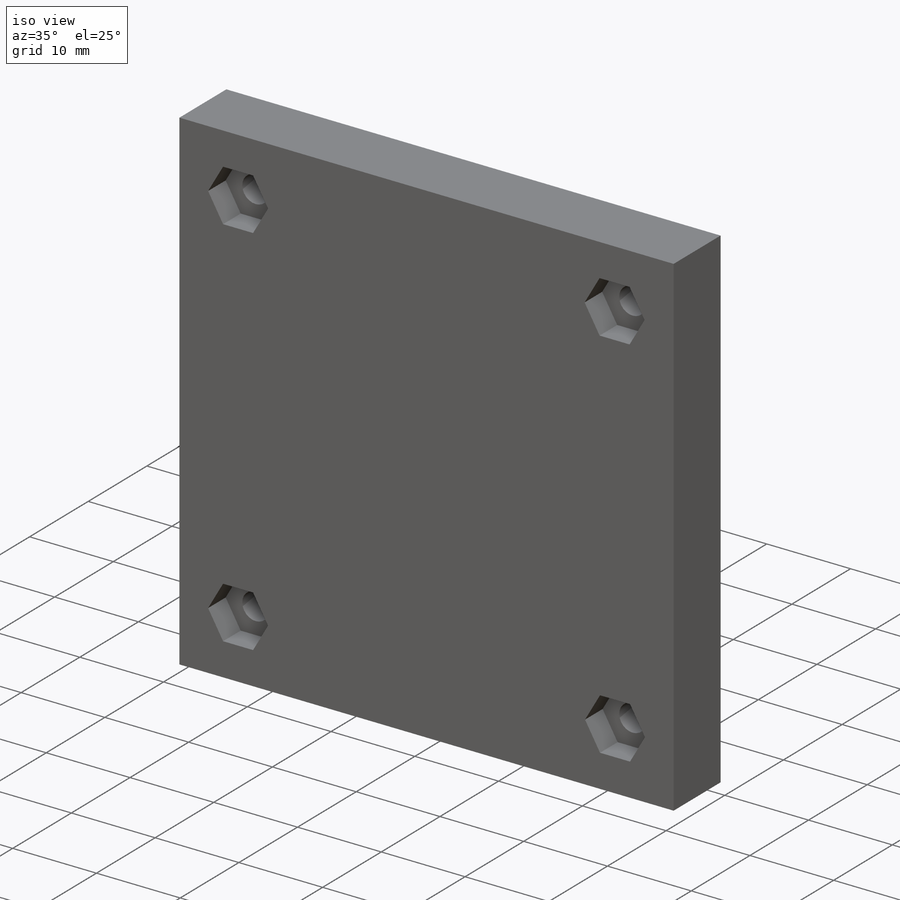
[diagram: iso view]
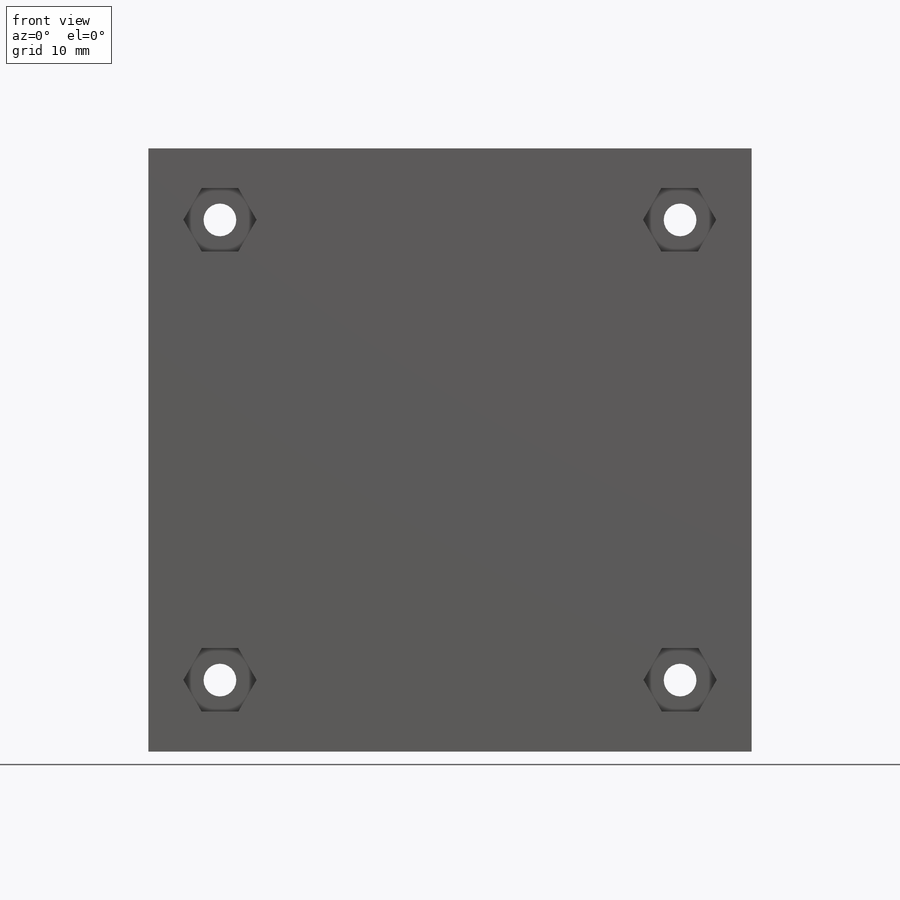
[diagram: front view]
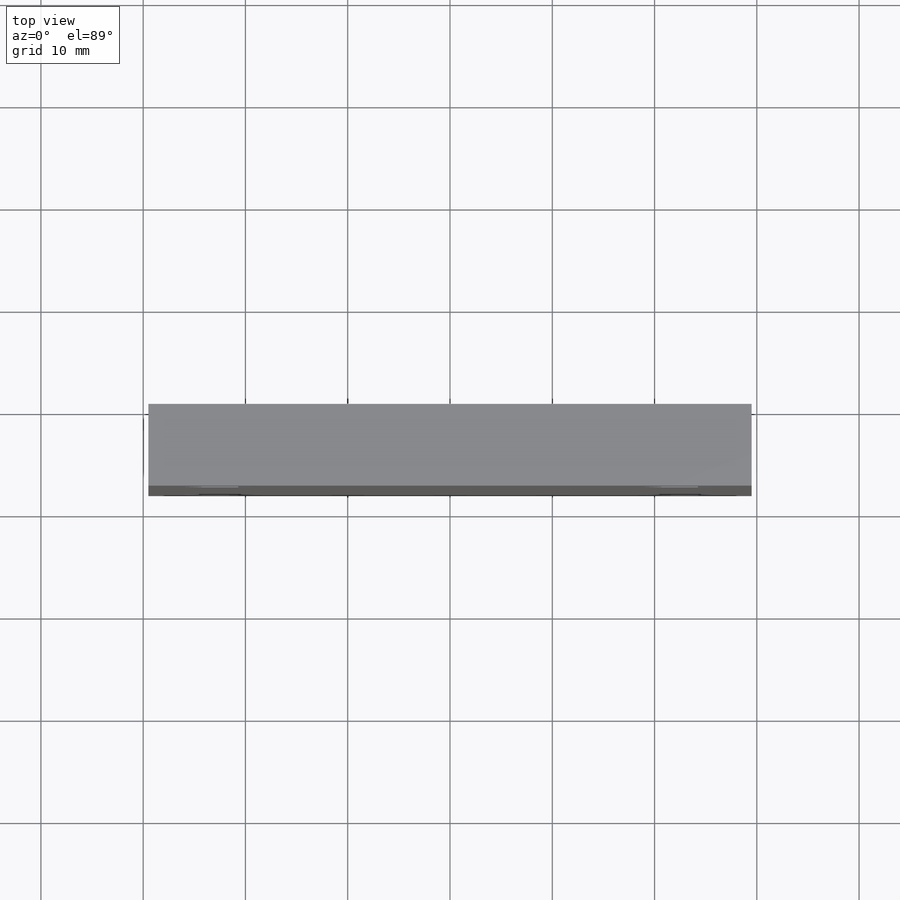
[diagram: top view]
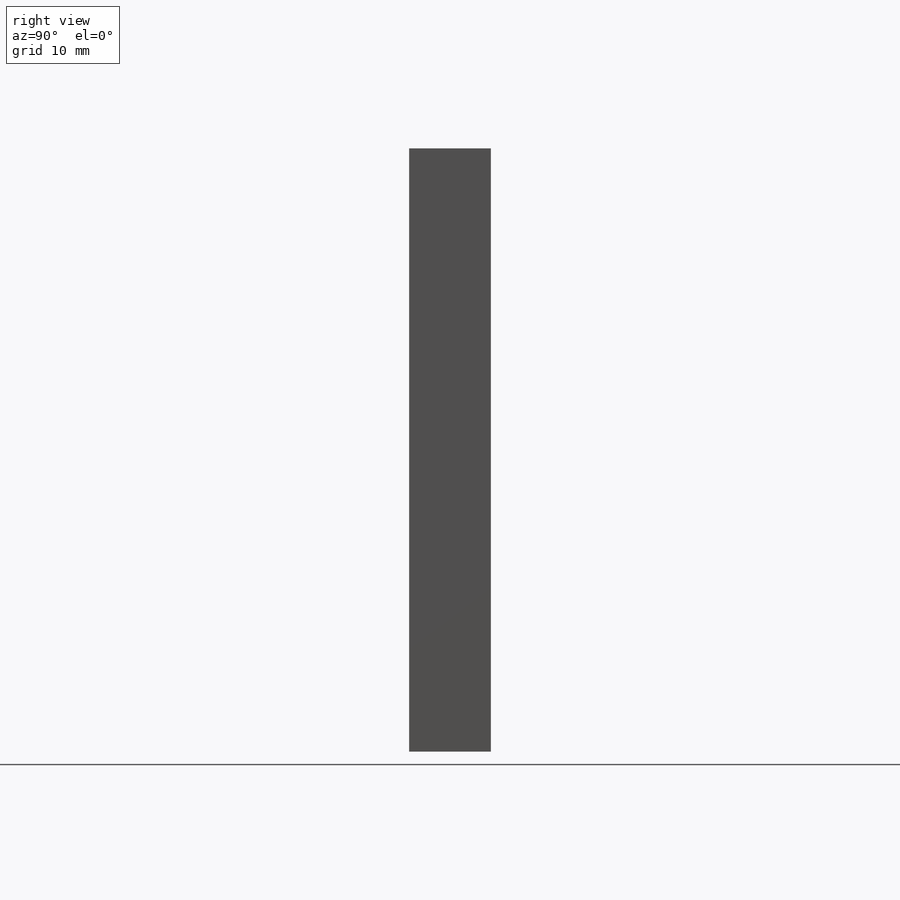
[diagram: right view]
SOLIDWORKS PART (.sldprt)
format: sldprt  version: not decoded by parser v0  size: 280,576 bytes
history: native  units: mm
features: sketch x6, cut_extrude x4, plane x3, extrude x2, material x1, shell x1 (+9 scaffold rows collapsed)
feature tree (26):
  scaffold x9  (default folders/planes/origin — collapsed)
  material  "Material <nicht festgelegt>"
  plane  "Ebene vorne"
  plane  "Ebene oben"
  plane  "Ebene rechts"
  sketch  "Skizze1"  dims[c1.D3=3.1mm c1.D8=3.1mm c1.D11=3.1mm c1.D12=3.1mm c1.D1=59.0mm c1.D2=59.0mm c1.D4=5.0mm c1.D5=5.0mm c1.D6=7.5mm c1.D7=15.0mm c1.D9=5.0mm c1.D10=5.0mm c1.D13=5.0mm c1.D14=~5.358034mm c2.D3=29.5mm c2.D4=29.5mm]
  extrude  "Aufsatz-Linear austragen1"  Depth=8mm
  sketch  "Skizze2"  dims[D1=55.0mm D2=55.0mm D3=27.5mm D4=27.5mm]
  sketch  "Skizze3"  dims[c1.D1=3.2mm c1.D2=3.2mm c1.D3=3.2mm c1.D4=3.2mm c1.D5=5.0mm c1.D6=5.0mm c1.D7=5.0mm c1.D8=5.0mm c1.D9=5.0mm c1.D10=5.0mm c1.D11=5.0mm c1.D12=5.0mm c2.D7=5.0mm]
  cut_extrude  "Schnitt-Linear austragen6"  Depth=2mm
  shell  "Wandung4"  Thickness=2mm
  sketch  "Skizze5"  dims[D1=10.0mm D2=10.0mm D3=10.0mm D4=10.0mm D5=10.0mm D6=10.0mm D7=10.0mm D8=10.0mm]
  extrude  "Aufsatz-Linear austragen2"  Depth=4mm
  cut_extrude  "Schnitt-Linear austragen8"  Depth=10mm
  sketch  "Skizze6"  dims[c1.D1=2.0mm c1.D2=3.0mm c1.D3=10.0mm c1.D4=20.0mm c2.D2=3.5mm c2.D5=2.5mm]
  cut_extrude  "Schnitt-Linear austragen10"  Depth=2mm
  sketch  "Skizze7"  dims[D1=6.2mm D2=6.2mm D3=6.2mm D4=6.2mm]
  cut_extrude  "Schnitt-Linear austragen11"  Depth=3mm
decode coverage: 13 of 13 modeling features carry decoded parameters
note: ~ marks probable driven/reference dimensions
note: suppression state not decoded; provenance and decode notes live in map.json
